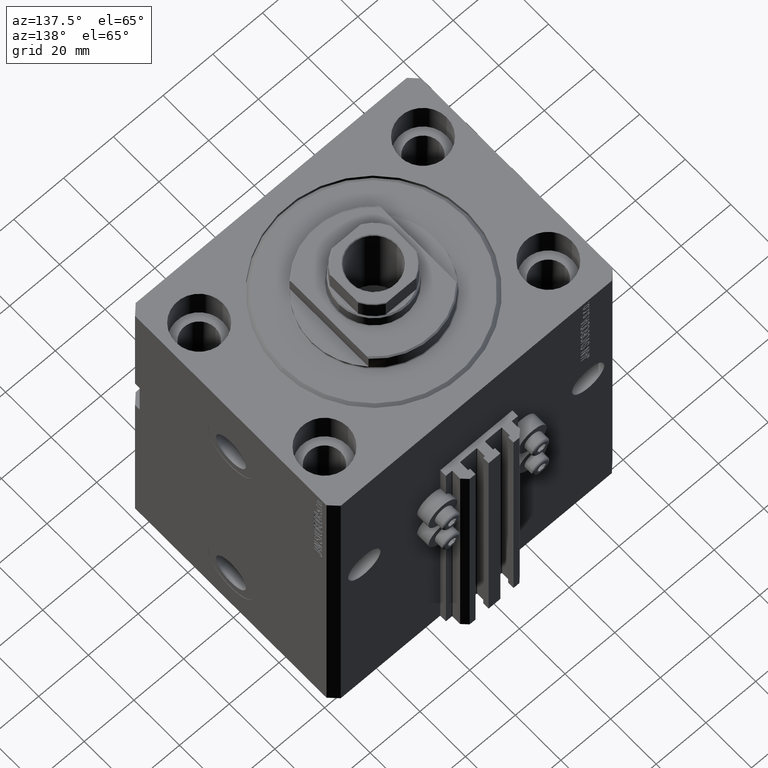
[diagram: clean part render]
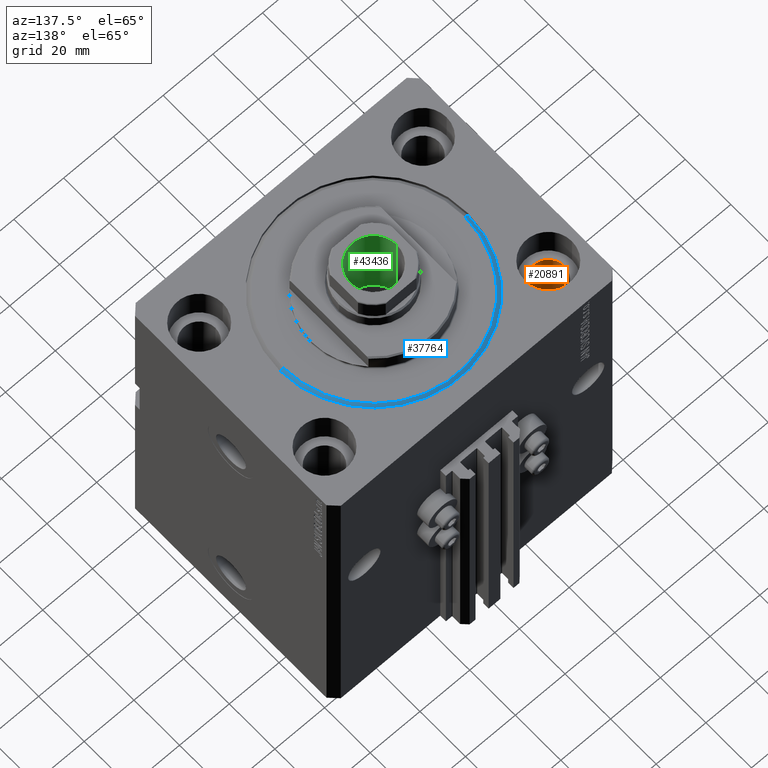
[diagram: same view with three faces highlighted in distinct colors, each labeled with its STEP entity id]
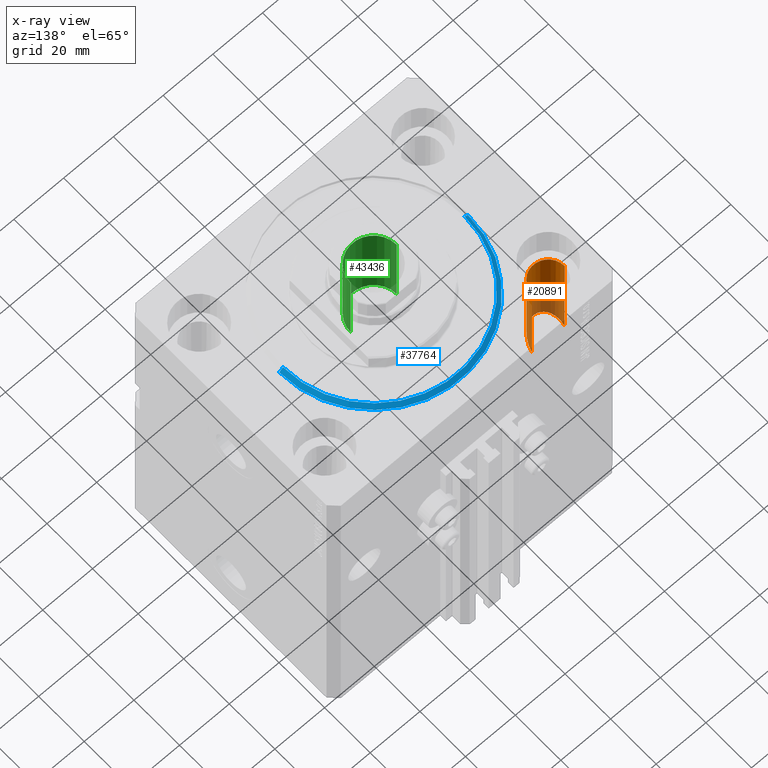
[diagram: x-ray of the same camera — body ghosted, the three highlighted faces saturated]
A machine part, auxiliary view with three faces highlighted in distinct colors.
The next image is the same camera in x-ray (body ghosted, the three faces saturated) — at least one of them is partly hidden behind the body in this view.
Their STEP definitions:

[orange] entity #20891 — the highlighted cylindrical surface (edge-blend (fillet) strip) has radius 6.5 mm, axis along (0, 0, 1).
#903 = FACE_OUTER_BOUND ( 'NONE', #24286, .T. ) ;
#1133 = VERTEX_POINT ( 'NONE', #4391 ) ;
#3697 = ORIENTED_EDGE ( 'NONE', *, *, #35139, .F. ) ;
#4391 = CARTESIAN_POINT ( 'NONE',  ( -51.50000000000000000, 27.50000000000000355, -13.00000000000000000 ) ) ;
#6367 = DIRECTION ( 'NONE',  ( 0.000000000000000000, 0.000000000000000000, 1.000000000000000000 ) ) ;
#8296 = EDGE_CURVE ( 'NONE', #1133, #47983, #36115, .T. ) ;
#9114 = CARTESIAN_POINT ( 'NONE',  ( -51.50000000000000000, 27.50000000000000355, -135.0000000000000000 ) ) ;
#10018 = CARTESIAN_POINT ( 'NONE',  ( -38.49999999999999289, 14.50000000000000888, -42.00000000000002132 ) ) ;
#11313 = AXIS2_PLACEMENT_3D ( 'NONE', #44747, #14922, #29947 ) ;
#12772 = VECTOR ( 'NONE', #12808, 1000.000000000000000 ) ;
#12808 = DIRECTION ( 'NONE',  ( -0.000000000000000000, -0.000000000000000000, 1.000000000000000000 ) ) ;
#13610 = CARTESIAN_POINT ( 'NONE',  ( -38.50000000000000000, 27.50000000000000355, -13.00000000000000000 ) ) ;
#14922 = DIRECTION ( 'NONE',  ( -0.000000000000000000, -0.000000000000000000, 1.000000000000000000 ) ) ;
#15220 = VERTEX_POINT ( 'NONE', #45226 ) ;
#17499 = ORIENTED_EDGE ( 'NONE', *, *, #18916, .T. ) ;
#17784 = VERTEX_POINT ( 'NONE', #27132 ) ;
#18123 = CARTESIAN_POINT ( 'NONE',  ( -51.50000000000000000, 27.50000000000000355, -55.00000000000002132 ) ) ;
#18916 = EDGE_CURVE ( 'NONE', #17784, #1133, #46772, .T. ) ;
#19248 = EDGE_CURVE ( 'NONE', #15220, #17784, #37634, .T. ) ;
#19516 = ORIENTED_EDGE ( 'NONE', *, *, #19248, .T. ) ;
#20891 = ADVANCED_FACE ( 'NONE', ( #903 ), #37612, .F. ) ;
#22548 = CARTESIAN_POINT ( 'NONE',  ( -45.00000000000000000, 27.50000000000000355, -13.00000000000000000 ) ) ;
#24286 = EDGE_LOOP ( 'NONE', ( #19516, #17499, #30214, #3697 ) ) ;
#27132 = CARTESIAN_POINT ( 'NONE',  ( -51.50000000000000000, 27.50000000000000355, -55.00000000000002132 ) ) ;
#29686 = CARTESIAN_POINT ( 'NONE',  ( -38.50000000000000000, 27.50000000000000355, -55.00000000000002132 ) ) ;
#29826 = VECTOR ( 'NONE', #37240, 1000.000000000000000 ) ;
#29947 = DIRECTION ( 'NONE',  ( 1.000000000000000000, 0.000000000000000000, 0.000000000000000000 ) ) ;
#30214 = ORIENTED_EDGE ( 'NONE', *, *, #8296, .T. ) ;
#35139 = EDGE_CURVE ( 'NONE', #15220, #47983, #41882, .T. ) ;
#36115 = CIRCLE ( 'NONE', #40060, 6.499999999999999112 ) ;
#37240 = DIRECTION ( 'NONE',  ( -0.000000000000000000, -0.000000000000000000, 1.000000000000000000 ) ) ;
#37365 = DIRECTION ( 'NONE',  ( 1.000000000000000000, 0.000000000000000000, 0.000000000000000000 ) ) ;
#37612 = CYLINDRICAL_SURFACE ( 'NONE', #11313, 6.499999999999999112 ) ;
#37634 =( BOUNDED_CURVE ( )  B_SPLINE_CURVE ( 3, ( #29686, #10018, #44000, #18123 ),
 .UNSPECIFIED., .F., .F. ) 
 B_SPLINE_CURVE_WITH_KNOTS ( ( 4, 4 ),
 ( 4.712388980384689674, 7.853981633974482790 ),
 .UNSPECIFIED. ) 
 CURVE ( )  GEOMETRIC_REPRESENTATION_ITEM ( )  RATIONAL_B_SPLINE_CURVE ( ( 1.000000000000000000, 0.3333333333333333703, 0.3333333333333333703, 1.000000000000000000 ) ) 
 REPRESENTATION_ITEM ( '' )  );
#40060 = AXIS2_PLACEMENT_3D ( 'NONE', #22548, #6367, #37365 ) ;
#41882 = LINE ( 'NONE', #45335, #29826 ) ;
#44000 = CARTESIAN_POINT ( 'NONE',  ( -51.50000000000000000, 14.50000000000000888, -42.00000000000002132 ) ) ;
#44747 = CARTESIAN_POINT ( 'NONE',  ( -45.00000000000000000, 27.50000000000000355, -135.0000000000000000 ) ) ;
#45226 = CARTESIAN_POINT ( 'NONE',  ( -38.50000000000000000, 27.50000000000000355, -55.00000000000002132 ) ) ;
#45335 = CARTESIAN_POINT ( 'NONE',  ( -38.50000000000000000, 27.50000000000000355, -135.0000000000000000 ) ) ;
#46772 = LINE ( 'NONE', #9114, #12772 ) ;
#47983 = VERTEX_POINT ( 'NONE', #13610 ) ;

[blue] entity #37764 — the highlighted conical surface has half-angle 45 deg.
#371 = FACE_OUTER_BOUND ( 'NONE', #6111, .T. ) ;
#1005 = VECTOR ( 'NONE', #33253, 1000.000000000000114 ) ;
#1524 = ORIENTED_EDGE ( 'NONE', *, *, #4163, .T. ) ;
#3054 = VERTEX_POINT ( 'NONE', #3459 ) ;
#3459 = CARTESIAN_POINT ( 'NONE',  ( -38.00000000000000000, 0.000000000000000000, 1.499999999999987566 ) ) ;
#3684 = ORIENTED_EDGE ( 'NONE', *, *, #18722, .F. ) ;
#4163 = EDGE_CURVE ( 'NONE', #32952, #3054, #21049, .T. ) ;
#5556 = VERTEX_POINT ( 'NONE', #41444 ) ;
#6111 = EDGE_LOOP ( 'NONE', ( #9730, #1524, #31129, #3684 ) ) ;
#6421 = LINE ( 'NONE', #29553, #1005 ) ;
#8594 = DIRECTION ( 'NONE',  ( -0.000000000000000000, -0.000000000000000000, 1.000000000000000000 ) ) ;
#9730 = ORIENTED_EDGE ( 'NONE', *, *, #30349, .F. ) ;
#11674 = DIRECTION ( 'NONE',  ( -0.000000000000000000, -0.000000000000000000, 1.000000000000000000 ) ) ;
#14316 = CIRCLE ( 'NONE', #23779, 38.00000000000000000 ) ;
#18722 = EDGE_CURVE ( 'NONE', #44314, #5556, #6421, .T. ) ;
#19827 = VECTOR ( 'NONE', #36339, 1000.000000000000114 ) ;
#21049 = LINE ( 'NONE', #24743, #19827 ) ;
#21903 = CARTESIAN_POINT ( 'NONE',  ( 0.000000000000000000, 0.000000000000000000, 0.000000000000000000 ) ) ;
#23779 = AXIS2_PLACEMENT_3D ( 'NONE', #28252, #8594, #34946 ) ;
#24743 = CARTESIAN_POINT ( 'NONE',  ( -38.00000000000000000, 4.653657836759941152E-15, 1.499999999999987566 ) ) ;
#24783 = CARTESIAN_POINT ( 'NONE',  ( 36.50000000000000000, 0.000000000000000000, 0.000000000000000000 ) ) ;
#25601 = DIRECTION ( 'NONE',  ( -0.000000000000000000, -0.000000000000000000, -1.000000000000000000 ) ) ;
#28252 = CARTESIAN_POINT ( 'NONE',  ( 0.000000000000000000, 0.000000000000000000, 1.499999999999987566 ) ) ;
#29553 = CARTESIAN_POINT ( 'NONE',  ( 38.00000000000000000, 0.000000000000000000, 1.499999999999987566 ) ) ;
#30349 = EDGE_CURVE ( 'NONE', #32952, #44314, #39007, .T. ) ;
#31129 = ORIENTED_EDGE ( 'NONE', *, *, #46143, .F. ) ;
#32952 = VERTEX_POINT ( 'NONE', #47897 ) ;
#33092 = CONICAL_SURFACE ( 'NONE', #47229, 38.00000000000000000, 0.7853981633974529419 ) ;
#33253 = DIRECTION ( 'NONE',  ( 0.7071067811865507924, 0.000000000000000000, 0.7071067811865441310 ) ) ;
#34946 = DIRECTION ( 'NONE',  ( 1.000000000000000000, 0.000000000000000000, 0.000000000000000000 ) ) ;
#36339 = DIRECTION ( 'NONE',  ( -0.7071067811865507924, 8.659560562354972301E-17, 0.7071067811865441310 ) ) ;
#37764 = ADVANCED_FACE ( 'NONE', ( #371 ), #33092, .T. ) ;
#39007 = CIRCLE ( 'NONE', #45278, 36.50000000000000000 ) ;
#41444 = CARTESIAN_POINT ( 'NONE',  ( 38.00000000000000000, 4.653657836759941941E-15, 1.499999999999987566 ) ) ;
#42438 = DIRECTION ( 'NONE',  ( 1.000000000000000000, 0.000000000000000000, 0.000000000000000000 ) ) ;
#44314 = VERTEX_POINT ( 'NONE', #24783 ) ;
#45278 = AXIS2_PLACEMENT_3D ( 'NONE', #21903, #25601, #47547 ) ;
#45883 = CARTESIAN_POINT ( 'NONE',  ( 0.000000000000000000, 0.000000000000000000, 1.499999999999987566 ) ) ;
#46143 = EDGE_CURVE ( 'NONE', #5556, #3054, #14316, .T. ) ;
#47229 = AXIS2_PLACEMENT_3D ( 'NONE', #45883, #11674, #42438 ) ;
#47547 = DIRECTION ( 'NONE',  ( 1.000000000000000000, 0.000000000000000000, 0.000000000000000000 ) ) ;
#47897 = CARTESIAN_POINT ( 'NONE',  ( -36.50000000000000000, 4.561809326823889791E-15, 0.000000000000000000 ) ) ;

[green] entity #43436 — the highlighted cylindrical surface (edge-blend (fillet) strip) has radius 9.25 mm, axis along (0, 0, 1).
#473 = EDGE_CURVE ( 'NONE', #37710, #30892, #23610, .T. ) ;
#3247 = DIRECTION ( 'NONE',  ( 1.000000000000000000, 0.000000000000000000, 0.000000000000000000 ) ) ;
#4429 = VERTEX_POINT ( 'NONE', #25589 ) ;
#5668 = CYLINDRICAL_SURFACE ( 'NONE', #30117, 9.249999999999996447 ) ;
#8690 = LINE ( 'NONE', #20480, #29312 ) ;
#9647 = ORIENTED_EDGE ( 'NONE', *, *, #46938, .T. ) ;
#10871 = CARTESIAN_POINT ( 'NONE',  ( 0.000000000000000000, 0.000000000000000000, 102.0000000000000142 ) ) ;
#11430 = CARTESIAN_POINT ( 'NONE',  ( 0.000000000000000000, 0.000000000000000000, 136.7000000000000171 ) ) ;
#11679 = DIRECTION ( 'NONE',  ( 1.000000000000000000, 0.000000000000000000, 0.000000000000000000 ) ) ;
#13350 = CARTESIAN_POINT ( 'NONE',  ( -9.249999999999996447, 1.132798289211301304E-15, 137.0000000000000000 ) ) ;
#14085 = ORIENTED_EDGE ( 'NONE', *, *, #473, .F. ) ;
#15120 = CIRCLE ( 'NONE', #19868, 9.249999999999996447 ) ;
#15600 = FACE_OUTER_BOUND ( 'NONE', #20002, .T. ) ;
#16314 = DIRECTION ( 'NONE',  ( 1.000000000000000000, 0.000000000000000000, 0.000000000000000000 ) ) ;
#16359 = CARTESIAN_POINT ( 'NONE',  ( 9.249999999999994671, 0.000000000000000000, 102.0000000000000142 ) ) ;
#19729 = EDGE_CURVE ( 'NONE', #4429, #26805, #15120, .T. ) ;
#19800 = EDGE_CURVE ( 'NONE', #30892, #26805, #8690, .T. ) ;
#19868 = AXIS2_PLACEMENT_3D ( 'NONE', #11430, #26415, #16314 ) ;
#20002 = EDGE_LOOP ( 'NONE', ( #14085, #9647, #47522, #31784 ) ) ;
#20444 = CARTESIAN_POINT ( 'NONE',  ( 0.000000000000000000, 0.000000000000000000, 137.0000000000000000 ) ) ;
#20480 = CARTESIAN_POINT ( 'NONE',  ( 9.249999999999996447, 0.000000000000000000, 137.0000000000000000 ) ) ;
#23610 = CIRCLE ( 'NONE', #44860, 9.249999999999994671 ) ;
#25589 = CARTESIAN_POINT ( 'NONE',  ( -9.249999999999996447, 1.132798289211301304E-15, 136.7000000000000171 ) ) ;
#26415 = DIRECTION ( 'NONE',  ( 0.000000000000000000, 0.000000000000000000, 1.000000000000000000 ) ) ;
#26805 = VERTEX_POINT ( 'NONE', #37107 ) ;
#29312 = VECTOR ( 'NONE', #46345, 1000.000000000000000 ) ;
#30117 = AXIS2_PLACEMENT_3D ( 'NONE', #20444, #35733, #11679 ) ;
#30892 = VERTEX_POINT ( 'NONE', #16359 ) ;
#31338 = DIRECTION ( 'NONE',  ( -0.000000000000000000, -0.000000000000000000, 1.000000000000000000 ) ) ;
#31784 = ORIENTED_EDGE ( 'NONE', *, *, #19800, .F. ) ;
#35733 = DIRECTION ( 'NONE',  ( -0.000000000000000000, -0.000000000000000000, 1.000000000000000000 ) ) ;
#37107 = CARTESIAN_POINT ( 'NONE',  ( 9.249999999999996447, 0.000000000000000000, 136.7000000000000171 ) ) ;
#37710 = VERTEX_POINT ( 'NONE', #41475 ) ;
#41475 = CARTESIAN_POINT ( 'NONE',  ( -9.249999999999994671, 1.132798289211300909E-15, 102.0000000000000142 ) ) ;
#43436 = ADVANCED_FACE ( 'NONE', ( #15600 ), #5668, .F. ) ;
#44860 = AXIS2_PLACEMENT_3D ( 'NONE', #10871, #47801, #3247 ) ;
#46345 = DIRECTION ( 'NONE',  ( -0.000000000000000000, -0.000000000000000000, 1.000000000000000000 ) ) ;
#46938 = EDGE_CURVE ( 'NONE', #37710, #4429, #47092, .T. ) ;
#47092 = LINE ( 'NONE', #13350, #48179 ) ;
#47522 = ORIENTED_EDGE ( 'NONE', *, *, #19729, .T. ) ;
#47801 = DIRECTION ( 'NONE',  ( -0.000000000000000000, -0.000000000000000000, 1.000000000000000000 ) ) ;
#48179 = VECTOR ( 'NONE', #31338, 1000.000000000000000 ) ;